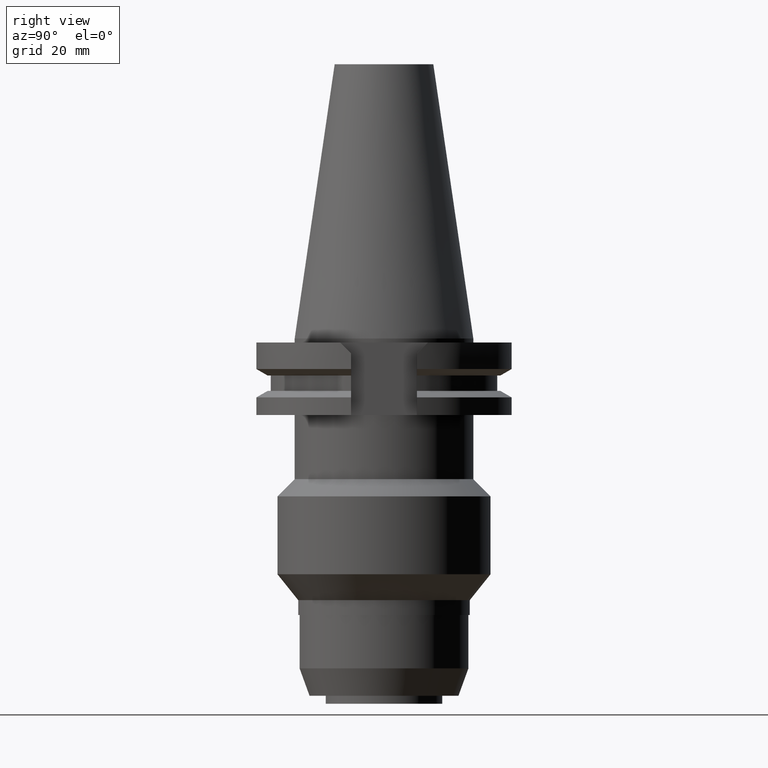
[diagram: clean part render]
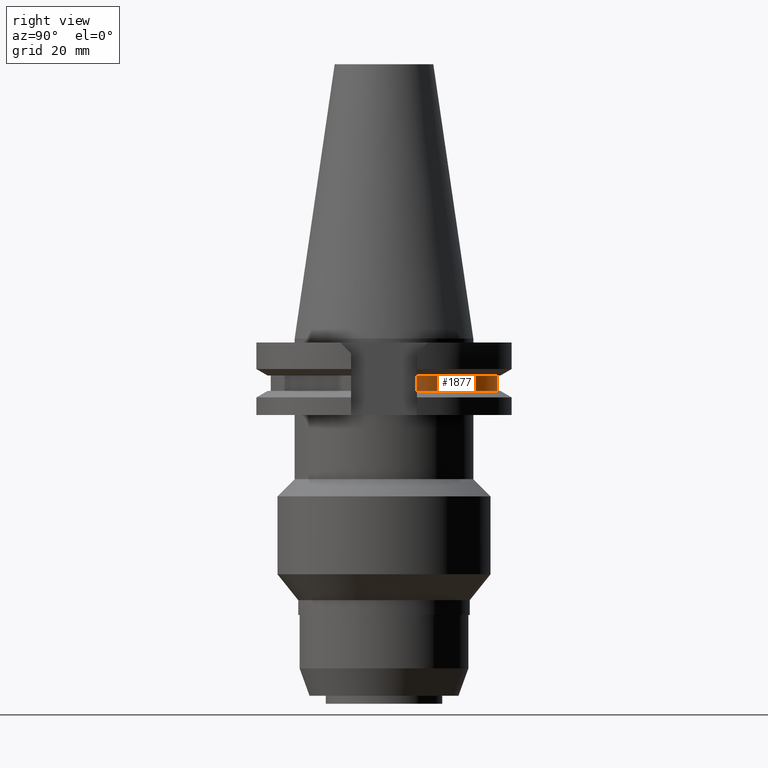
[diagram: same view with one face highlighted and labeled with its STEP entity id]
A machine part, right view. The second image highlights one B-rep face of the part: STEP entity #1877.
In plain terms, the highlighted cylindrical surface (partial cylindrical patch) has radius 28.18 mm, axis along (0, 0, -1).
Its self-contained STEP definition (entity closure, byte-faithful):
#453=CARTESIAN_POINT('',(0.E0,2.157919508608E-14,-1.30475E1));
#454=DIRECTION('',(0.E0,0.E0,1.E0));
#455=DIRECTION('',(9.568350128908E-1,2.906316536551E-1,0.E0));
#456=AXIS2_PLACEMENT_3D('',#453,#454,#455);
#461=CARTESIAN_POINT('',(0.E0,2.157919508608E-14,-1.30475E1));
#462=DIRECTION('',(0.E0,0.E0,1.E0));
#463=DIRECTION('',(0.E0,1.E0,0.E0));
#464=AXIS2_PLACEMENT_3D('',#461,#462,#463);
#492=DIRECTION('',(0.E0,0.E0,1.E0));
#493=VECTOR('',#492,3.84E0);
#494=CARTESIAN_POINT('',(2.696361066326E1,8.19E0,-1.30475E1));
#495=LINE('',#494,#493);
#499=DIRECTION('',(0.E0,0.E0,-1.E0));
#500=VECTOR('',#499,3.84E0);
#501=CARTESIAN_POINT('',(-2.696361066326E1,8.19E0,-9.2075E0));
#502=LINE('',#501,#500);
#529=CARTESIAN_POINT('',(0.E0,2.157919508608E-14,-9.2075E0));
#530=DIRECTION('',(0.E0,0.E0,-1.E0));
#531=DIRECTION('',(-9.568350128908E-1,2.906316536551E-1,0.E0));
#532=AXIS2_PLACEMENT_3D('',#529,#530,#531);
#537=CARTESIAN_POINT('',(0.E0,2.157919508608E-14,-9.2075E0));
#538=DIRECTION('',(0.E0,0.E0,-1.E0));
#539=DIRECTION('',(0.E0,1.E0,0.E0));
#540=AXIS2_PLACEMENT_3D('',#537,#538,#539);
#1476=CARTESIAN_POINT('',(-2.696361066326E1,8.19E0,-1.30475E1));
#1477=VERTEX_POINT('',#1476);
#1478=CARTESIAN_POINT('',(-2.696361066326E1,8.19E0,-9.2075E0));
#1479=VERTEX_POINT('',#1478);
#1492=CARTESIAN_POINT('',(2.696361066326E1,8.19E0,-1.30475E1));
#1493=VERTEX_POINT('',#1492);
#1494=CARTESIAN_POINT('',(-6.305166448056E-14,2.818E1,-1.30475E1));
#1495=VERTEX_POINT('',#1494);
#1498=CARTESIAN_POINT('',(2.696361066326E1,8.19E0,-9.2075E0));
#1499=VERTEX_POINT('',#1498);
#1500=CARTESIAN_POINT('',(4.351173924716E-14,2.818E1,-9.2075E0));
#1501=VERTEX_POINT('',#1500);
#1862=CARTESIAN_POINT('',(0.E0,2.157919508608E-14,7.62075E1));
#1863=DIRECTION('',(0.E0,0.E0,-1.E0));
#1864=DIRECTION('',(0.E0,-1.E0,0.E0));
#1865=AXIS2_PLACEMENT_3D('',#1862,#1863,#1864);
#1866=CYLINDRICAL_SURFACE('',#1865,2.818E1);
#1867=ORIENTED_EDGE('',*,*,#1709,.T.);
#1869=ORIENTED_EDGE('',*,*,#1868,.F.);
#1871=ORIENTED_EDGE('',*,*,#1870,.F.);
#1872=ORIENTED_EDGE('',*,*,#1802,.T.);
#1873=ORIENTED_EDGE('',*,*,#1854,.F.);
#1874=ORIENTED_EDGE('',*,*,#1852,.F.);
#1875=EDGE_LOOP('',(#1867,#1869,#1871,#1872,#1873,#1874));
#1876=FACE_OUTER_BOUND('',#1875,.F.);
#457=CIRCLE('',#456,2.818E1);
#465=CIRCLE('',#464,2.818E1);
#533=CIRCLE('',#532,2.818E1);
#541=CIRCLE('',#540,2.818E1);
#1709=EDGE_CURVE('',#1493,#1499,#495,.T.);
#1802=EDGE_CURVE('',#1479,#1477,#502,.T.);
#1852=EDGE_CURVE('',#1493,#1495,#457,.T.);
#1854=EDGE_CURVE('',#1495,#1477,#465,.T.);
#1868=EDGE_CURVE('',#1501,#1499,#541,.T.);
#1870=EDGE_CURVE('',#1479,#1501,#533,.T.);
#1877=ADVANCED_FACE('',(#1876),#1866,.T.);